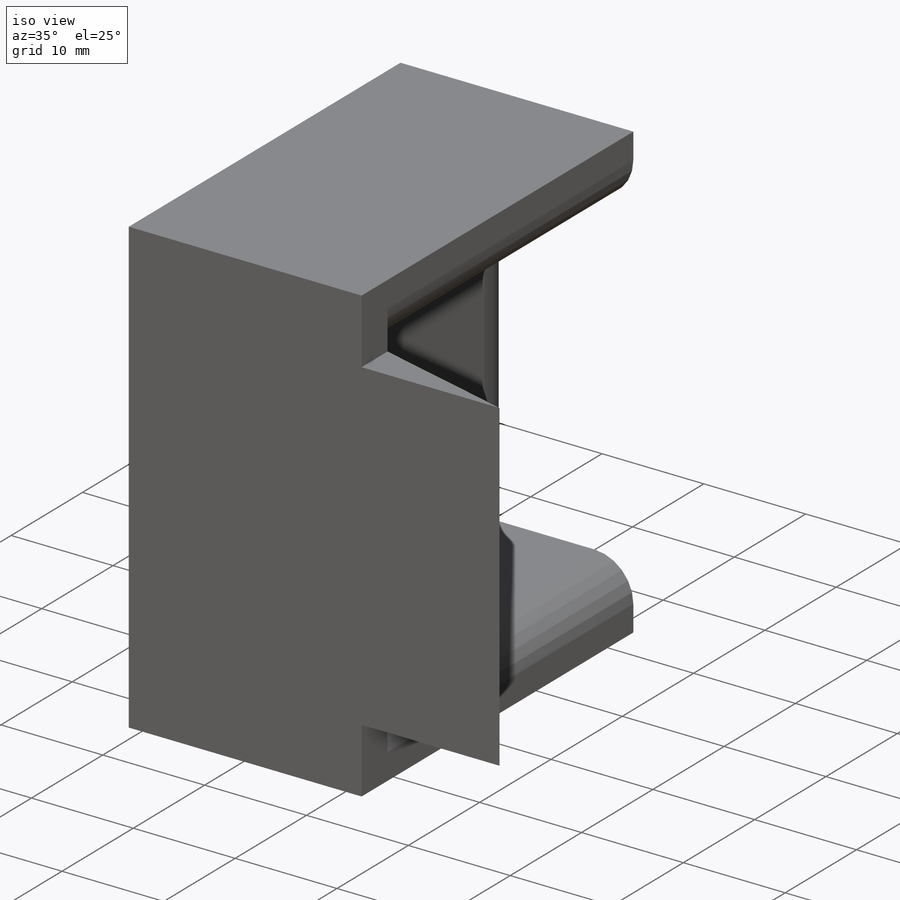
[diagram: iso view]
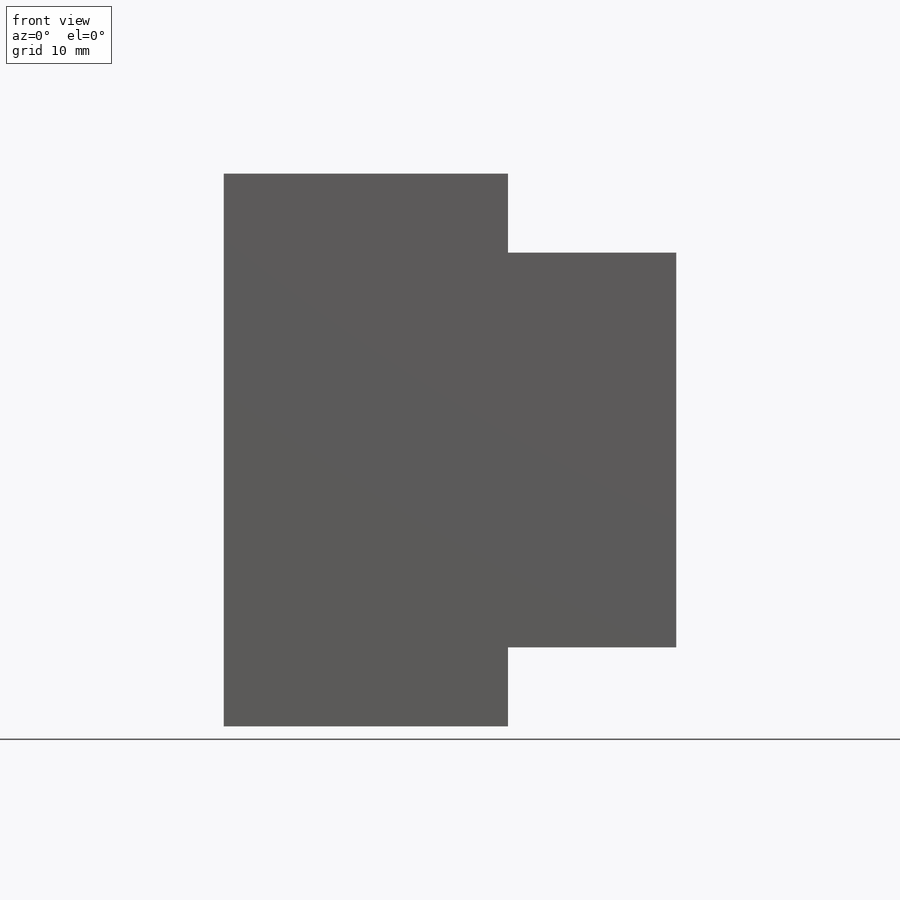
[diagram: front view]
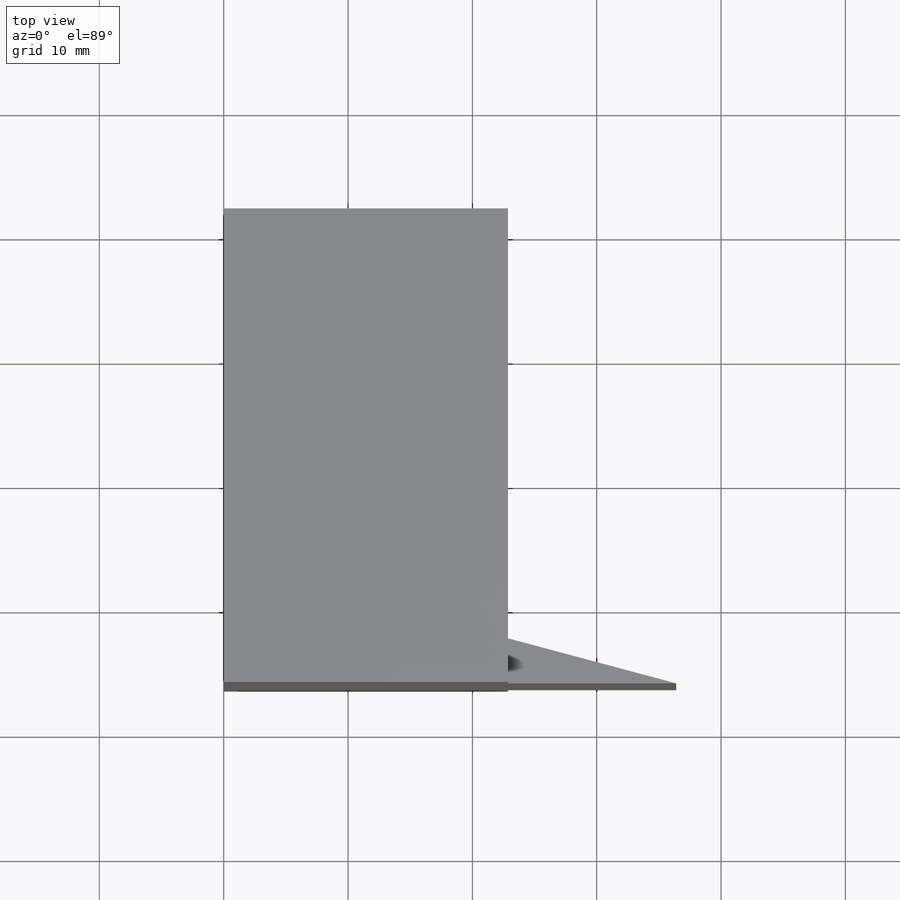
[diagram: top view]
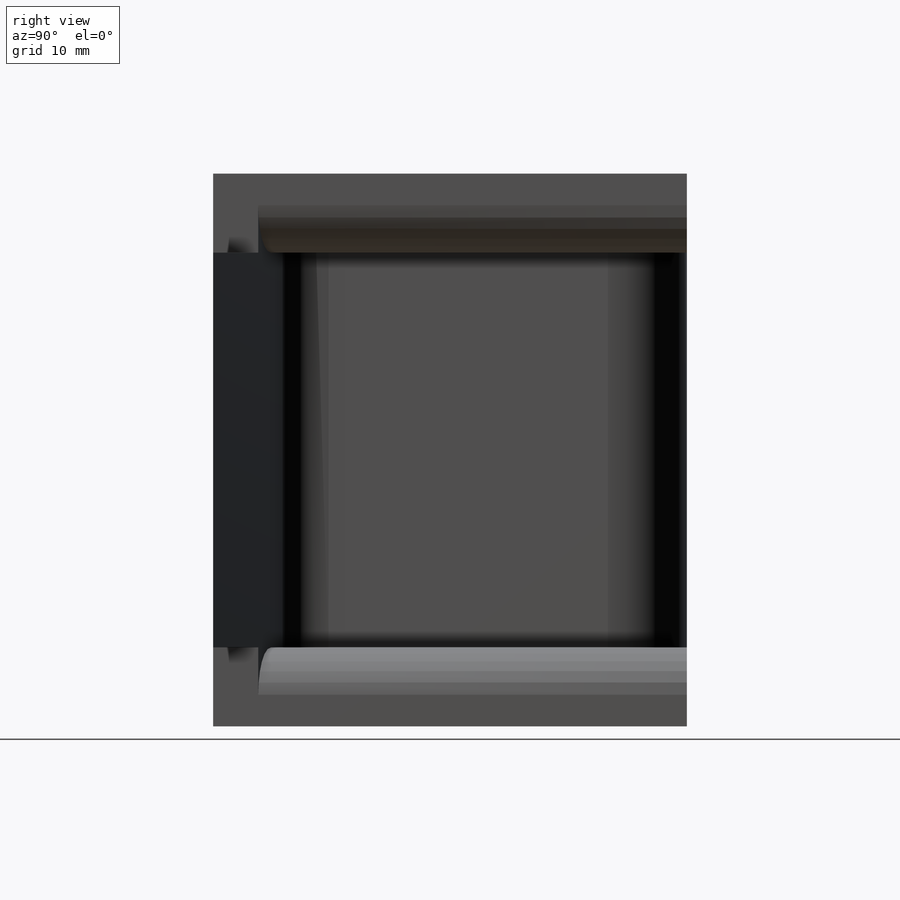
[diagram: right view]
SOLIDWORKS PART (.sldprt)
format: sldprt  version: not decoded by parser v0  size: 223,744 bytes
history: native  units: mm
features: sketch x5, extrude x5, fillet x3, material x1, chamfer x1 (+11 scaffold rows collapsed)
feature tree (26):
  scaffold x11  (default folders/planes/origin — collapsed)
  material  "Material <not specified>"
  sketch  "Sketch1"  dims[D1=30.48mm D2=38.1mm]
  extrude  "Boss-Extrude1"  Depth=12.7mm
  sketch  "Sketch2"  dims[D1=50.8mm]
  extrude  "Boss-Extrude2"  Depth=6.35mm
  sketch  "Sketch3"  dims[D1=27.94mm D2=50.8mm D3=0.0mm]
  extrude  "Boss-Extrude3"  Depth=5.08mm
  sketch  "Sketch4"  dims[D1=27.94mm D2=50.8mm]
  extrude  "Boss-Extrude4"  Depth=5.08mm
  chamfer  "Chamfer3"  Distance=25.4mm Angle=15deg
  fillet  "Fillet4"  Radius=6.35mm
  fillet  "Fillet6"  Radius=3.81mm
  sketch  "Sketch5"  dims[c1.D1=10.16mm c1.D2=19.05mm c1.D3=~19.784145mm c2.D3=90.0deg c3.D3=22.098mm]
  extrude  "Boss-Extrude5"  Depth=10.16mm
  fillet  "Fillet7"  Radius=3.81mm
decode coverage: 14 of 14 modeling features carry decoded parameters
note: ~ marks probable driven/reference dimensions
note: suppression state not decoded; provenance and decode notes live in map.json
